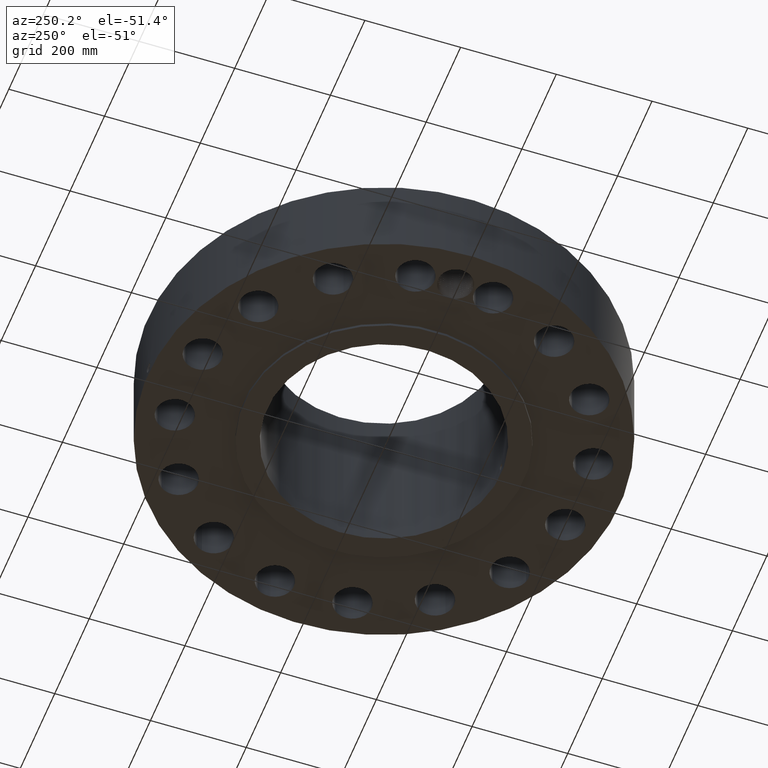
[diagram: clean part render]
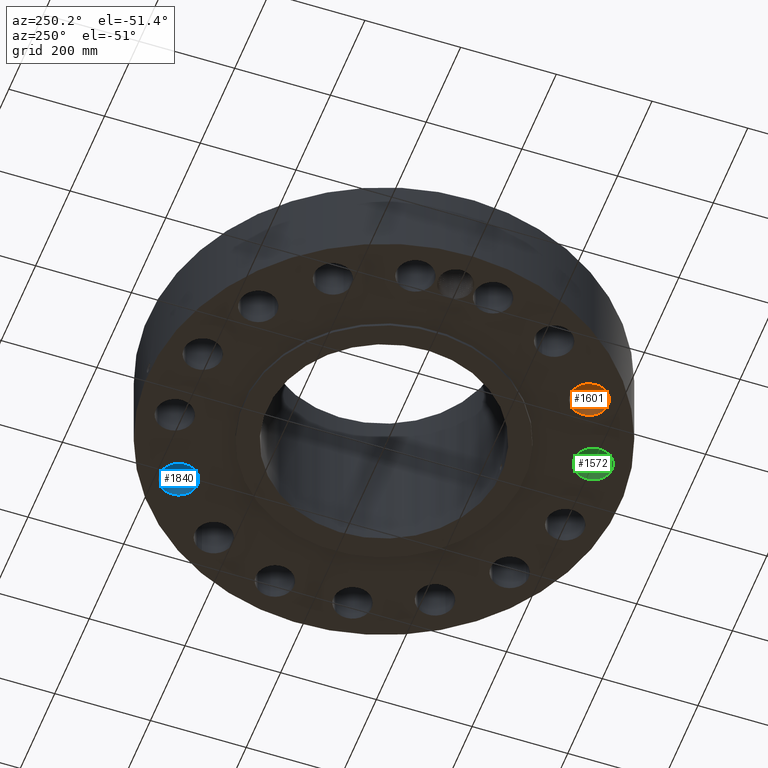
[diagram: same view with three faces highlighted in distinct colors, each labeled with its STEP entity id]
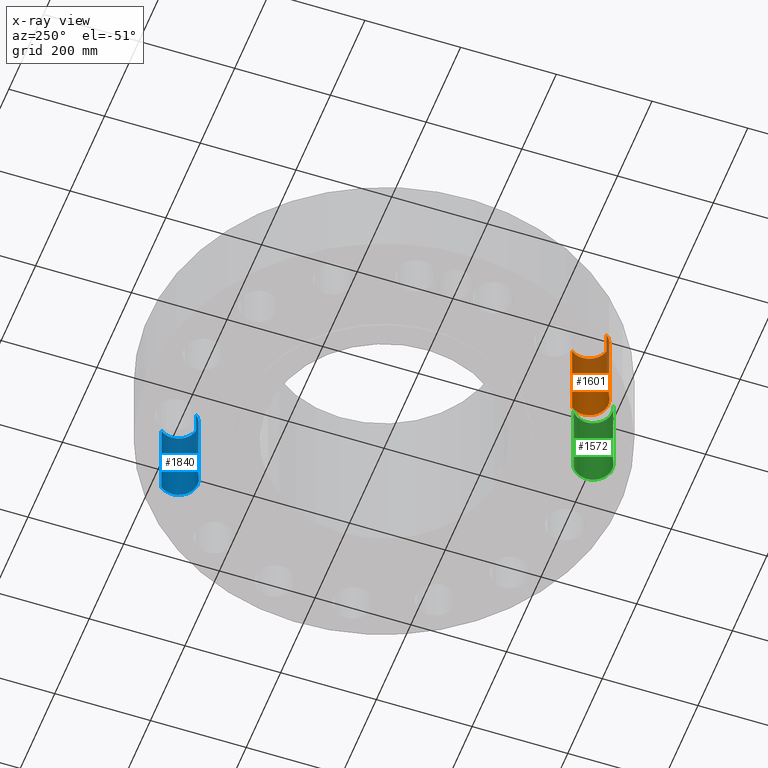
[diagram: x-ray of the same camera — body ghosted, the three highlighted faces saturated]
A machine part, auxiliary view with three faces highlighted in distinct colors.
The next image is the same camera in x-ray (body ghosted, the three faces saturated) — at least one of them is partly hidden behind the body in this view.
Their STEP definitions:

[orange] entity #1601 — the highlighted cylindrical surface (edge-blend (fillet) strip) has radius 39.624 mm, axis along (-0, 0, -1).
#350=AXIS2_PLACEMENT_3D('Circle Axis2P3D',#348,#349,$) ;
#838=AXIS2_PLACEMENT_3D('Circle Axis2P3D',#836,#837,$) ;
#1583=AXIS2_PLACEMENT_3D('Cylinder Axis2P3D',#1580,#1581,#1582) ;
#348=CARTESIAN_POINT('Axis2P3D Location',(-9.09746256573,-13.6153149015,0.250000000001)) ;
#352=CARTESIAN_POINT('Vertex',(-7.88258487659,-12.6367076256,0.250000000001)) ;
#354=CARTESIAN_POINT('Vertex',(-10.3123402549,-14.5939221774,0.250000000001)) ;
#831=CARTESIAN_POINT('Vertex',(-10.3123402549,-14.5939221774,7.25000000003)) ;
#833=CARTESIAN_POINT('Vertex',(-7.88258487659,-12.6367076256,7.25000000003)) ;
#836=CARTESIAN_POINT('Axis2P3D Location',(-9.09746256573,-13.6153149015,7.25000000003)) ;
#1580=CARTESIAN_POINT('Axis2P3D Location',(-9.09746256573,-13.6153149015,7.24606299215)) ;
#1585=CARTESIAN_POINT('Line Origine',(-7.88258487659,-12.6367076256,3.75000000002)) ;
#1590=CARTESIAN_POINT('Line Origine',(-10.3123402549,-14.5939221774,3.75000000002)) ;
#349=DIRECTION('Axis2P3D Direction',(0.,0.,-0.0393700787402)) ;
#837=DIRECTION('Axis2P3D Direction',(0.,0.,-0.0393700787402)) ;
#1581=DIRECTION('Axis2P3D Direction',(-0.,0.,-0.0393700787402)) ;
#1582=DIRECTION('Axis2P3D XDirection',(-0.030660147616,-0.0246973368639,0.)) ;
#1586=DIRECTION('Vector Direction',(0.,0.,-0.0393700787402)) ;
#1591=DIRECTION('Vector Direction',(0.,0.,-0.0393700787402)) ;
#1587=VECTOR('Line Direction',#1586,0.0393700787402) ;
#1592=VECTOR('Line Direction',#1591,0.0393700787402) ;
#1596=ORIENTED_EDGE('',*,*,#1589,.F.) ;
#1597=ORIENTED_EDGE('',*,*,#356,.T.) ;
#1598=ORIENTED_EDGE('',*,*,#1594,.T.) ;
#1599=ORIENTED_EDGE('',*,*,#840,.F.) ;
#1601=ADVANCED_FACE('PartBody',(#1600),#1584,.F.) ;
#351=CIRCLE('generated circle',#350,1.56000000001) ;
#839=CIRCLE('generated circle',#838,1.56000000001) ;
#1584=CYLINDRICAL_SURFACE('generated cylinder',#1583,1.56000000001) ;
#356=EDGE_CURVE('',#353,#355,#351,.T.) ;
#840=EDGE_CURVE('',#834,#832,#839,.T.) ;
#1589=EDGE_CURVE('',#353,#834,#1588,.F.) ;
#1594=EDGE_CURVE('',#355,#832,#1593,.F.) ;
#1595=EDGE_LOOP('',(#1596,#1597,#1598,#1599)) ;
#1600=FACE_OUTER_BOUND('',#1595,.T.) ;
#1588=LINE('Line',#1585,#1587) ;
#1593=LINE('Line',#1590,#1592) ;
#353=VERTEX_POINT('',#352) ;
#355=VERTEX_POINT('',#354) ;
#832=VERTEX_POINT('',#831) ;
#834=VERTEX_POINT('',#833) ;

[blue] entity #1840 — the highlighted cylindrical surface (edge-blend (fillet) strip) has radius 39.624 mm, axis along (0, 0, -1).
#503=AXIS2_PLACEMENT_3D('Circle Axis2P3D',#501,#502,$) ;
#973=AXIS2_PLACEMENT_3D('Circle Axis2P3D',#971,#972,$) ;
#1815=AXIS2_PLACEMENT_3D('Cylinder Axis2P3D',#1812,#1813,#1814) ;
#496=CARTESIAN_POINT('Vertex',(7.88258487659,12.6367076256,0.250000000001)) ;
#498=CARTESIAN_POINT('Vertex',(10.3123402549,14.5939221774,0.250000000001)) ;
#501=CARTESIAN_POINT('Axis2P3D Location',(9.09746256573,13.6153149015,0.250000000001)) ;
#971=CARTESIAN_POINT('Axis2P3D Location',(9.09746256573,13.6153149015,7.25000000003)) ;
#975=CARTESIAN_POINT('Vertex',(10.3123402549,14.5939221774,7.25000000003)) ;
#977=CARTESIAN_POINT('Vertex',(7.88258487659,12.6367076256,7.25000000003)) ;
#1812=CARTESIAN_POINT('Axis2P3D Location',(9.09746256573,13.6153149015,7.24606299215)) ;
#1817=CARTESIAN_POINT('Line Origine',(7.88258487659,12.6367076256,3.75000000001)) ;
#1822=CARTESIAN_POINT('Line Origine',(10.3123402549,14.5939221774,3.75000000001)) ;
#502=DIRECTION('Axis2P3D Direction',(0.,0.,-0.0393700787402)) ;
#972=DIRECTION('Axis2P3D Direction',(0.,0.,-0.0393700787402)) ;
#1813=DIRECTION('Axis2P3D Direction',(0.,0.,-0.0393700787402)) ;
#1814=DIRECTION('Axis2P3D XDirection',(0.030660147616,0.0246973368639,0.)) ;
#1818=DIRECTION('Vector Direction',(0.,0.,-0.0393700787402)) ;
#1823=DIRECTION('Vector Direction',(0.,0.,-0.0393700787402)) ;
#1819=VECTOR('Line Direction',#1818,0.0393700787402) ;
#1824=VECTOR('Line Direction',#1823,0.0393700787402) ;
#1835=ORIENTED_EDGE('',*,*,#1826,.F.) ;
#1836=ORIENTED_EDGE('',*,*,#505,.T.) ;
#1837=ORIENTED_EDGE('',*,*,#1821,.T.) ;
#1838=ORIENTED_EDGE('',*,*,#979,.F.) ;
#1840=ADVANCED_FACE('PartBody',(#1839),#1816,.F.) ;
#504=CIRCLE('generated circle',#503,1.56000000001) ;
#974=CIRCLE('generated circle',#973,1.56000000001) ;
#1816=CYLINDRICAL_SURFACE('generated cylinder',#1815,1.56000000001) ;
#505=EDGE_CURVE('',#499,#497,#504,.T.) ;
#979=EDGE_CURVE('',#976,#978,#974,.T.) ;
#1821=EDGE_CURVE('',#497,#978,#1820,.F.) ;
#1826=EDGE_CURVE('',#499,#976,#1825,.F.) ;
#1834=EDGE_LOOP('',(#1835,#1836,#1837,#1838)) ;
#1839=FACE_OUTER_BOUND('',#1834,.T.) ;
#1820=LINE('Line',#1817,#1819) ;
#1825=LINE('Line',#1822,#1824) ;
#497=VERTEX_POINT('',#496) ;
#499=VERTEX_POINT('',#498) ;
#976=VERTEX_POINT('',#975) ;
#978=VERTEX_POINT('',#977) ;

[green] entity #1572 — the highlighted cylindrical surface (edge-blend (fillet) strip) has radius 39.624 mm, axis along (0, -0, -1).
#332=AXIS2_PLACEMENT_3D('Circle Axis2P3D',#330,#331,$) ;
#820=AXIS2_PLACEMENT_3D('Circle Axis2P3D',#818,#819,$) ;
#1554=AXIS2_PLACEMENT_3D('Cylinder Axis2P3D',#1551,#1552,#1553) ;
#330=CARTESIAN_POINT('Axis2P3D Location',(-3.19460402303,-16.0603589667,0.250000000001)) ;
#334=CARTESIAN_POINT('Vertex',(-2.4467001828,-14.6913301701,0.250000000001)) ;
#336=CARTESIAN_POINT('Vertex',(-3.94250786325,-17.4293877632,0.250000000001)) ;
#813=CARTESIAN_POINT('Vertex',(-3.94250786325,-17.4293877632,7.25000000003)) ;
#815=CARTESIAN_POINT('Vertex',(-2.4467001828,-14.6913301701,7.25000000003)) ;
#818=CARTESIAN_POINT('Axis2P3D Location',(-3.19460402303,-16.0603589667,7.25000000003)) ;
#1551=CARTESIAN_POINT('Axis2P3D Location',(-3.19460402303,-16.0603589667,7.24606299215)) ;
#1556=CARTESIAN_POINT('Line Origine',(-2.4467001828,-14.6913301701,3.75000000002)) ;
#1561=CARTESIAN_POINT('Line Origine',(-3.94250786325,-17.4293877632,3.75000000002)) ;
#331=DIRECTION('Axis2P3D Direction',(0.,0.,-0.0393700787402)) ;
#819=DIRECTION('Axis2P3D Direction',(0.,0.,-0.0393700787402)) ;
#1552=DIRECTION('Axis2P3D Direction',(0.,-0.,-0.0393700787402)) ;
#1553=DIRECTION('Axis2P3D XDirection',(-0.0188750212049,-0.0345504945626,0.)) ;
#1557=DIRECTION('Vector Direction',(0.,0.,-0.0393700787402)) ;
#1562=DIRECTION('Vector Direction',(0.,0.,-0.0393700787402)) ;
#1558=VECTOR('Line Direction',#1557,0.0393700787402) ;
#1563=VECTOR('Line Direction',#1562,0.0393700787402) ;
#1567=ORIENTED_EDGE('',*,*,#1560,.F.) ;
#1568=ORIENTED_EDGE('',*,*,#338,.T.) ;
#1569=ORIENTED_EDGE('',*,*,#1565,.T.) ;
#1570=ORIENTED_EDGE('',*,*,#822,.F.) ;
#1572=ADVANCED_FACE('PartBody',(#1571),#1555,.F.) ;
#333=CIRCLE('generated circle',#332,1.56000000001) ;
#821=CIRCLE('generated circle',#820,1.56000000001) ;
#1555=CYLINDRICAL_SURFACE('generated cylinder',#1554,1.56000000001) ;
#338=EDGE_CURVE('',#335,#337,#333,.T.) ;
#822=EDGE_CURVE('',#816,#814,#821,.T.) ;
#1560=EDGE_CURVE('',#335,#816,#1559,.F.) ;
#1565=EDGE_CURVE('',#337,#814,#1564,.F.) ;
#1566=EDGE_LOOP('',(#1567,#1568,#1569,#1570)) ;
#1571=FACE_OUTER_BOUND('',#1566,.T.) ;
#1559=LINE('Line',#1556,#1558) ;
#1564=LINE('Line',#1561,#1563) ;
#335=VERTEX_POINT('',#334) ;
#337=VERTEX_POINT('',#336) ;
#814=VERTEX_POINT('',#813) ;
#816=VERTEX_POINT('',#815) ;